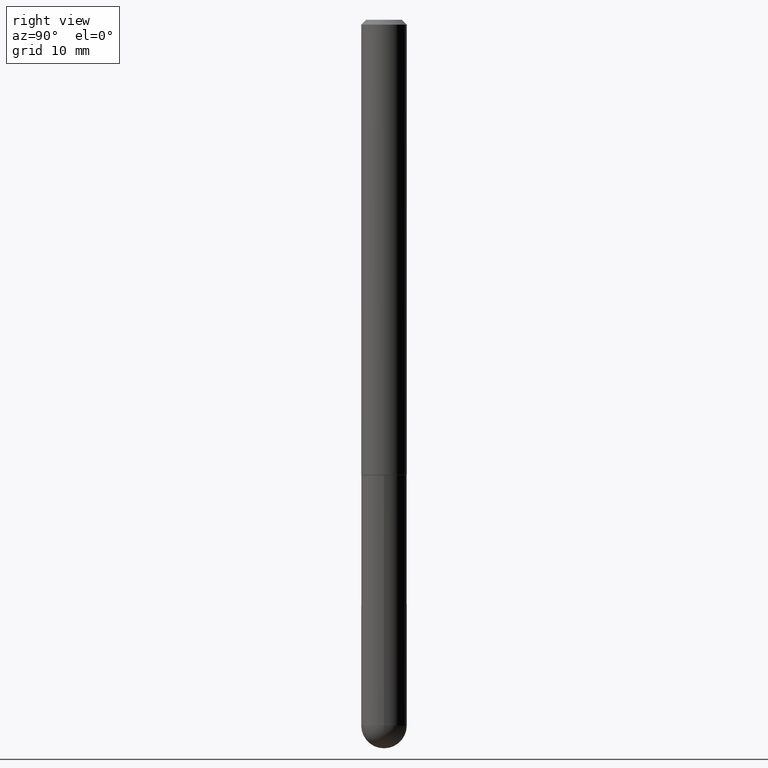
[diagram: clean part render]
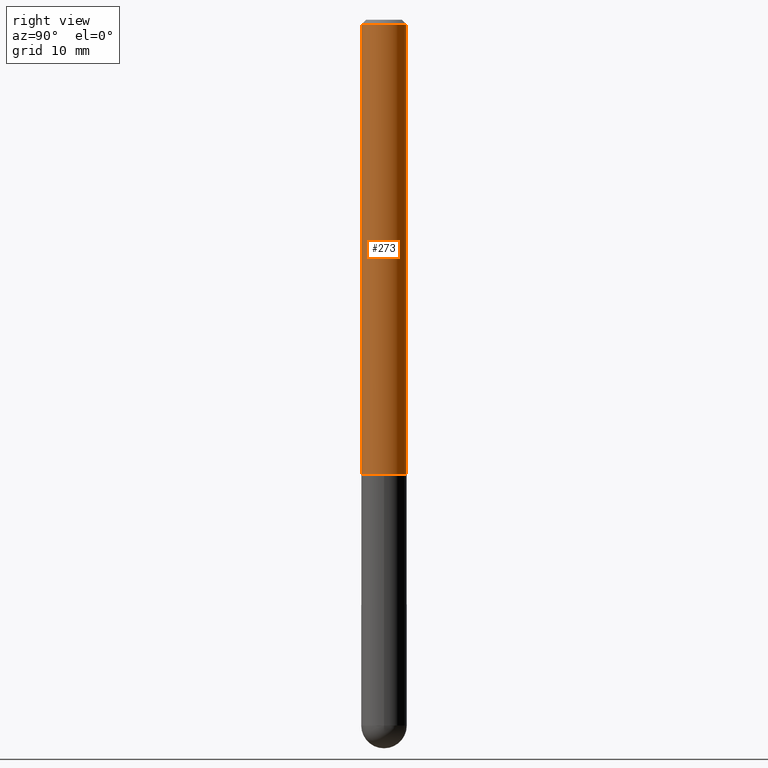
[diagram: same view with one face highlighted and labeled with its STEP entity id]
A machine part, right view. The second image highlights one B-rep face of the part: STEP entity #273.
In plain terms, the highlighted cylindrical surface (edge-blend (fillet) strip) has radius 2.3813 mm, axis along (-0, 0, 1).
Its self-contained STEP definition (entity closure, byte-faithful):
#13 = CARTESIAN_POINT ( 'NONE',  ( 4.582815290947142665E-29, -6.543026365248299499E-15, -1.874000000000000110 ) ) ;
#19 = EDGE_CURVE ( 'NONE', #208, #76, #230, .T. ) ;
#36 = AXIS2_PLACEMENT_3D ( 'NONE', #305, #268, #337 ) ;
#41 = DIRECTION ( 'NONE',  ( -2.445472407122275024E-29, 3.491476182096210881E-15, 1.000000000000000000 ) ) ;
#61 = ORIENTED_EDGE ( 'NONE', *, *, #193, .T. ) ;
#65 = CARTESIAN_POINT ( 'NONE',  ( 6.546527510330881944E-16, 0.09374999999999997224, -0.02000000000000034736 ) ) ;
#76 = VERTEX_POINT ( 'NONE', #65 ) ;
#92 = ORIENTED_EDGE ( 'NONE', *, *, #362, .T. ) ;
#102 = DIRECTION ( 'NONE',  ( -2.445472407122274744E-29, 3.491476182096211275E-15, 1.000000000000000000 ) ) ;
#130 = CARTESIAN_POINT ( 'NONE',  ( -6.431716872910807882E-16, -0.09375000000000011102, -0.01999999999999968817 ) ) ;
#135 = AXIS2_PLACEMENT_3D ( 'NONE', #175, #308, #277 ) ;
#172 = CIRCLE ( 'NONE', #240, 0.09375000000000024980 ) ;
#175 = CARTESIAN_POINT ( 'NONE',  ( 0.000000000000000000, 0.000000000000000000, 0.000000000000000000 ) ) ;
#184 = VECTOR ( 'NONE', #314, 39.37007874015748143 ) ;
#193 = EDGE_CURVE ( 'NONE', #374, #229, #172, .T. ) ;
#208 = VERTEX_POINT ( 'NONE', #130 ) ;
#214 = CARTESIAN_POINT ( 'NONE',  ( 6.661338147750948117E-16, 0.09375000000000013878, -3.273258920715202261E-16 ) ) ;
#215 = VECTOR ( 'NONE', #102, 39.37007874015748143 ) ;
#226 = DIRECTION ( 'NONE',  ( -6.982962677686265133E-15, -1.000000000000000000, 2.913971193241872878E-15 ) ) ;
#229 = VERTEX_POINT ( 'NONE', #304 ) ;
#230 = CIRCLE ( 'NONE', #36, 0.09375000000000004163 ) ;
#240 = AXIS2_PLACEMENT_3D ( 'NONE', #13, #41, #226 ) ;
#263 = EDGE_LOOP ( 'NONE', ( #61, #92, #298, #394 ) ) ;
#268 = DIRECTION ( 'NONE',  ( -2.445472407122275024E-29, 3.491476182096210881E-15, 1.000000000000000000 ) ) ;
#272 = CARTESIAN_POINT ( 'NONE',  ( -6.546527510330432293E-16, -0.09375000000000678624, -1.873999999999999666 ) ) ;
#273 = ADVANCED_FACE ( 'NONE', ( #404 ), #313, .T. ) ;
#277 = DIRECTION ( 'NONE',  ( -6.982962677686266711E-15, -1.000000000000000000, 3.491476182096210486E-15 ) ) ;
#298 = ORIENTED_EDGE ( 'NONE', *, *, #19, .F. ) ;
#301 = CARTESIAN_POINT ( 'NONE',  ( -6.546527510330884902E-16, -0.09375000000000013878, 3.273258920715202261E-16 ) ) ;
#304 = CARTESIAN_POINT ( 'NONE',  ( 6.661338147751182803E-16, 0.09374999999999368561, -1.874000000000000332 ) ) ;
#305 = CARTESIAN_POINT ( 'NONE',  ( 4.890944814244553657E-31, -6.982952364192427333E-17, -0.02000000000000001776 ) ) ;
#308 = DIRECTION ( 'NONE',  ( -2.445472407122275024E-29, 3.491476182096210881E-15, 1.000000000000000000 ) ) ;
#313 = CYLINDRICAL_SURFACE ( 'NONE', #135, 0.09375000000000013878 ) ;
#314 = DIRECTION ( 'NONE',  ( -2.445472407122274744E-29, 3.491476182096211275E-15, 1.000000000000000000 ) ) ;
#315 = EDGE_CURVE ( 'NONE', #374, #208, #336, .T. ) ;
#336 = LINE ( 'NONE', #301, #215 ) ;
#337 = DIRECTION ( 'NONE',  ( -6.982962677686266711E-15, -1.000000000000000000, 3.505871591869136121E-15 ) ) ;
#339 = LINE ( 'NONE', #214, #184 ) ;
#362 = EDGE_CURVE ( 'NONE', #229, #76, #339, .T. ) ;
#374 = VERTEX_POINT ( 'NONE', #272 ) ;
#394 = ORIENTED_EDGE ( 'NONE', *, *, #315, .F. ) ;
#404 = FACE_OUTER_BOUND ( 'NONE', #263, .T. ) ;